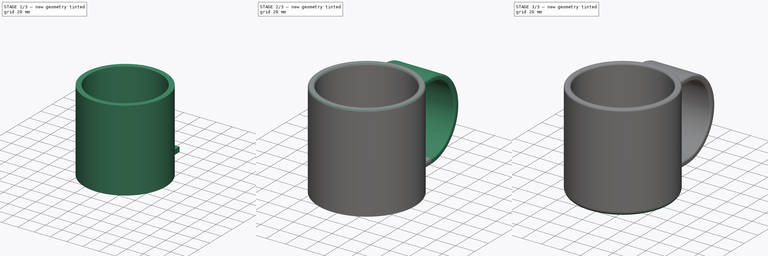
[diagram: build sequence overview — one tinted view per stage of 3, left to right]
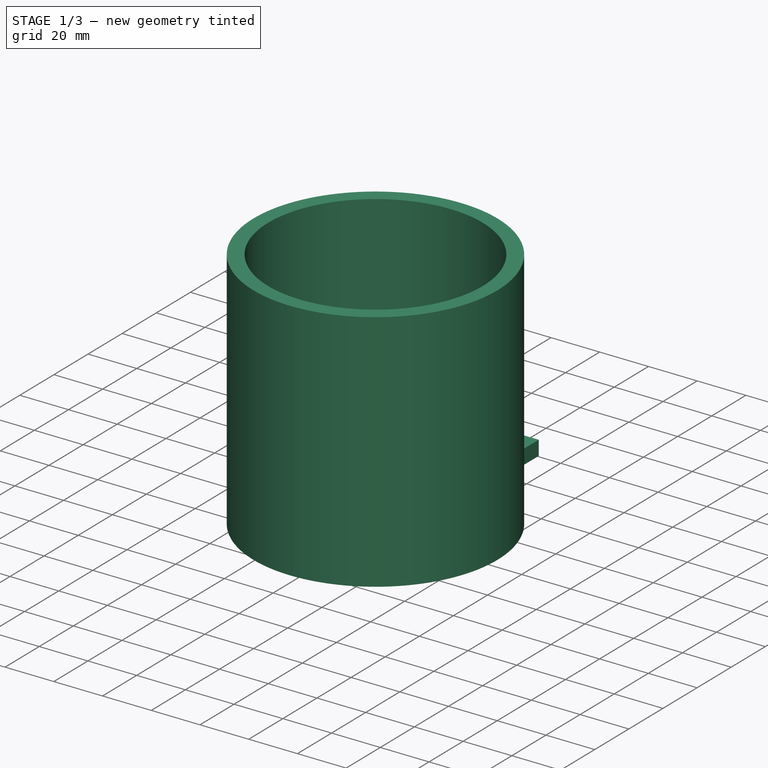
[diagram: stage 1 of 3 — iso view after this stage's code; geometry added in this stage tinted green]
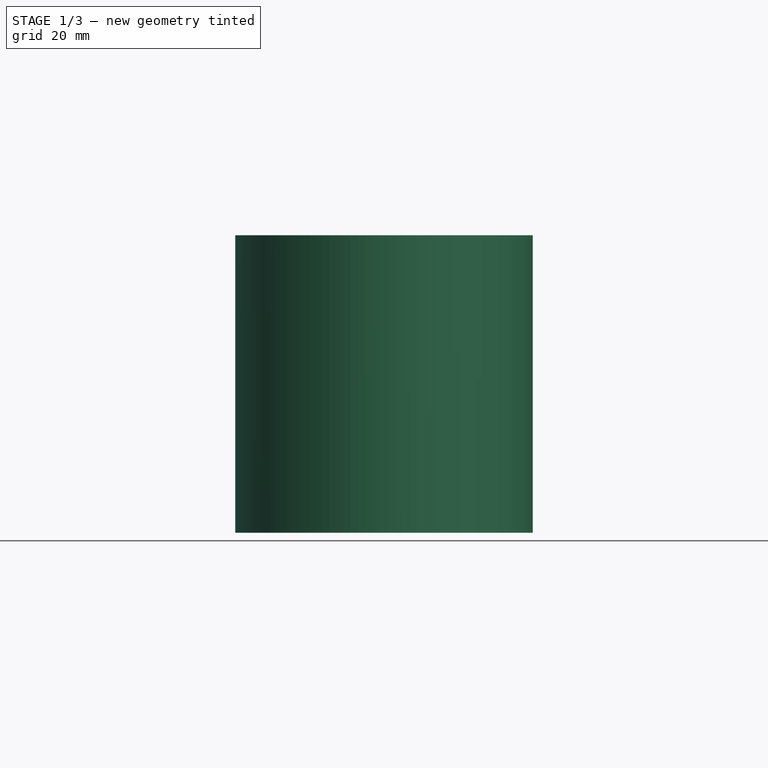
[diagram: stage 1 of 3 — front view after this stage's code; geometry added in this stage tinted green]
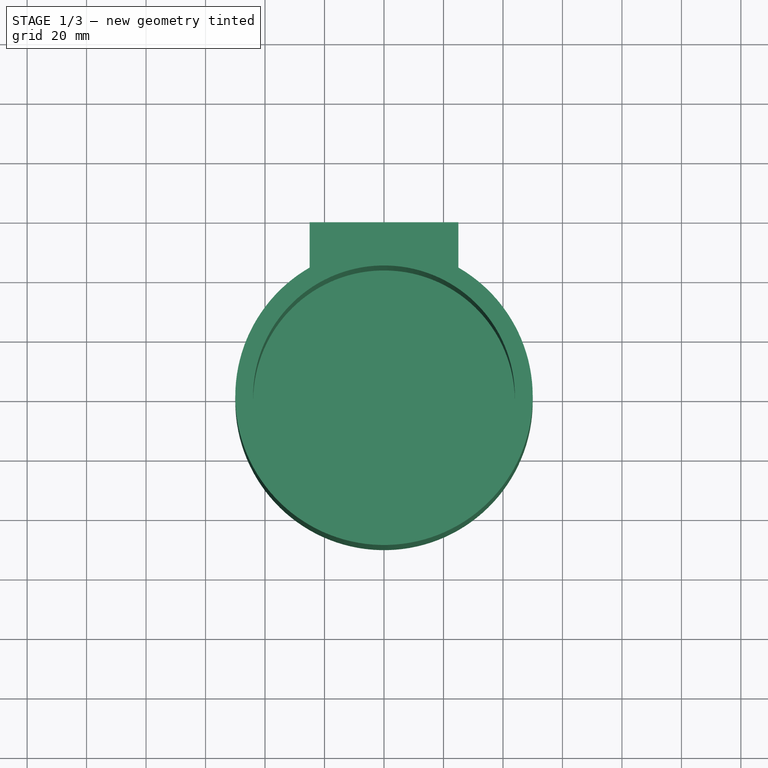
[diagram: stage 1 of 3 — top view after this stage's code; geometry added in this stage tinted green]
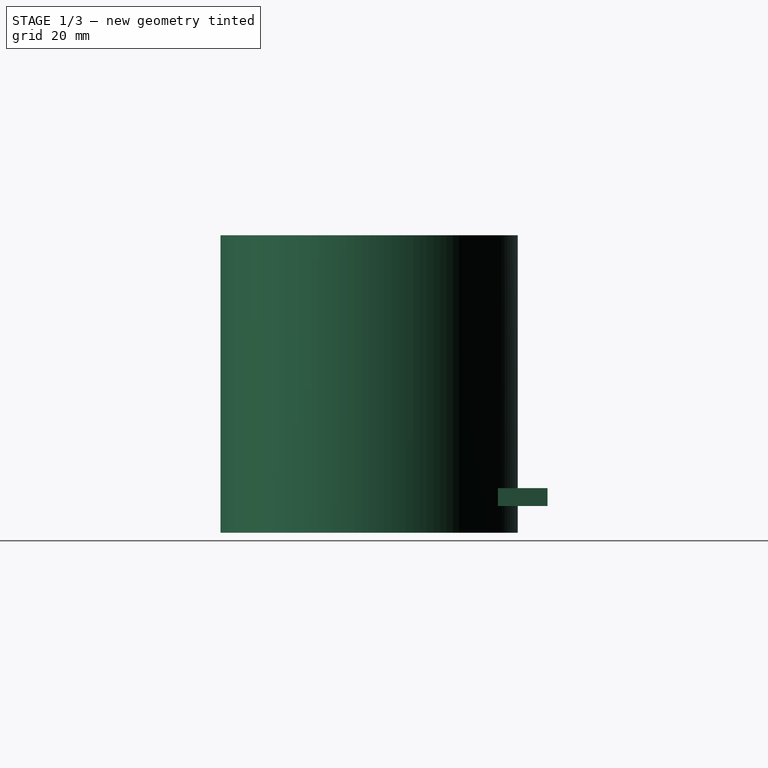
[diagram: stage 1 of 3 — right view after this stage's code; geometry added in this stage tinted green]
FCSTD DOCUMENT  (FreeCAD 0.19R22846 (Git))
Label: uebung2_remastered
License: All rights reserved
LicenseURL: http://en.wikipedia.org/wiki/All_rights_reserved
objects: Sketcher::SketchObject×3, PartDesign::Fillet×3, PartDesign::Pad×2, PartDesign::Revolution×1, PartDesign::LinearPattern×1, PartDesign::Body×1
note: 17 computed .brp shape members not serialized (recipe doc carries the construction recipe); baked Part::Feature solids carry a one-line shape summary decoded from their .brp

FEATURE [Sketcher::SketchObject] Sketch  label="sk_grundkoerper"
  MapMode = 5
  Placement = pos=(0,0,0) rot=(1,0,0;1.5708rad)
  sketch-geometry (6):
    g0: LineSegment StartX=-50 StartY=100 StartZ=0 EndX=-50 EndY=0 EndZ=0
    g1: LineSegment StartX=-44 StartY=4 StartZ=0 EndX=-44 EndY=100 EndZ=0
    g2: LineSegment StartX=-50 StartY=0 StartZ=0 EndX=0 EndY=0 EndZ=0
    g3: LineSegment StartX=0 StartY=0 StartZ=0 EndX=0 EndY=4 EndZ=0
    g4: LineSegment StartX=0 StartY=4 StartZ=0 EndX=-44 EndY=4 EndZ=0
    g5: LineSegment StartX=-44 StartY=100 StartZ=0 EndX=-50 EndY=100 EndZ=0
  constraints (17):
    c: Vertical(g0)
    c: Vertical(g1)
    c: DistanceY(g0,g1) = 4
    c: Coincident(g2,g-1)
    c: Horizontal(g2)
    c: Coincident(g2,g3)
    c: Coincident(g3,g4)
    c: Coincident(g4,g1)
    c: Horizontal(g4)
    c: Coincident(g5,g1)
    c: Coincident(g5,g0)
    c: DistanceX(g5,g5) = 6
    c: Vertical(g3)
    c: DistanceY(g0,g0) = 100
    c: DistanceX(g0,g2) = 50
    c: Horizontal(g5)
    c: Coincident(g0,g2)
FEATURE [PartDesign::Revolution] Revolution  label="r_grundkoerper"
  Angle = 360
  Axis = (0,-2e-16,1)
  Base = (0,0,0)
  Placement = pos=(0,0,0) rot=(1,0,0;1.5708rad)
  Profile = -> Sketch
  ReferenceAxis = -> Sketch [V_Axis]
  Refine = true
FEATURE [Sketcher::SketchObject] Sketch001  label="sk_griff_basis"
  AttachmentOffset = pos=(0,0,9) rot=(0,0,1;0rad)
  ExternalGeometry = -> [Revolution]
  MapMode = 5
  Placement = pos=(0,0,9) rot=(0,0,1;0rad)
  Support = -> [XY_Plane001]
  sketch-geometry (4):
    g0: LineSegment StartX=-25 StartY=60 StartZ=0 EndX=25 EndY=60 EndZ=0
    g1: LineSegment StartX=25 StartY=60 StartZ=0 EndX=25 EndY=43.3013 EndZ=0
    g2: LineSegment StartX=-25 StartY=43.3013 StartZ=0 EndX=-25 EndY=60 EndZ=0
    g3: ArcOfCircle CenterX=0 CenterY=0 CenterZ=0 NormalX=0 NormalY=0 NormalZ=1 AngleXU=0 Radius=50 StartAngle=1.0472 EndAngle=2.0944
  constraints (11):
    c: Coincident(g0,g1)
    c: Coincident(g2,g0)
    c: Vertical(g1)
    c: Vertical(g2)
    c: Coincident(g3,g-1)
    c: PointOnObject(g3,g-3)
    c: Coincident(g2,g3)
    c: Coincident(g1,g3)
    c: DistanceX(g0,g0) = 50
    c: Symmetric(g0,g0,g-2)
    c: DistanceY(g3,g0) = 60
FEATURE [PartDesign::Pad] Pad  label="p_griff_basis"
  BaseFeature = -> Revolution
  Direction = (1,1,1)
  Length = 6
  Length2 = 100
  Placement = pos=(0,0,0) rot=(1,0,0;1.5708rad)
  Profile = -> Sketch001
  Refine = true
  Type = 0
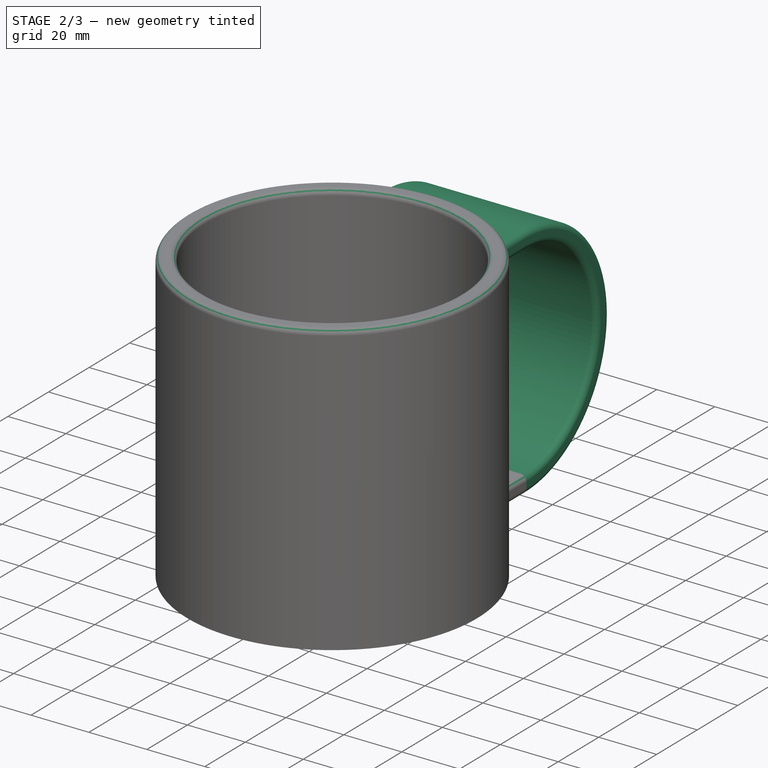
[diagram: stage 2 of 3 — iso view after this stage's code; geometry added in this stage tinted green]
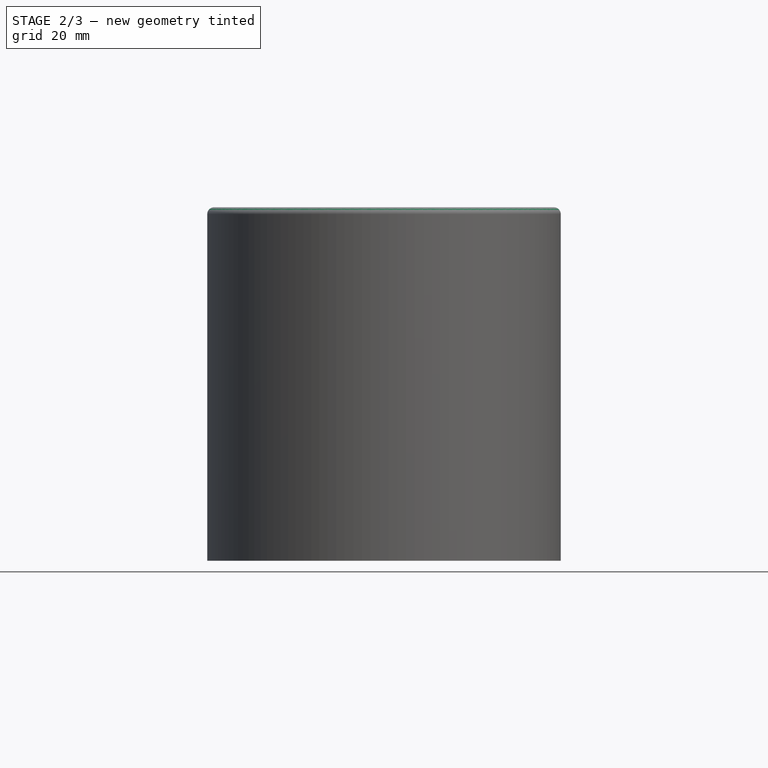
[diagram: stage 2 of 3 — front view after this stage's code; geometry added in this stage tinted green]
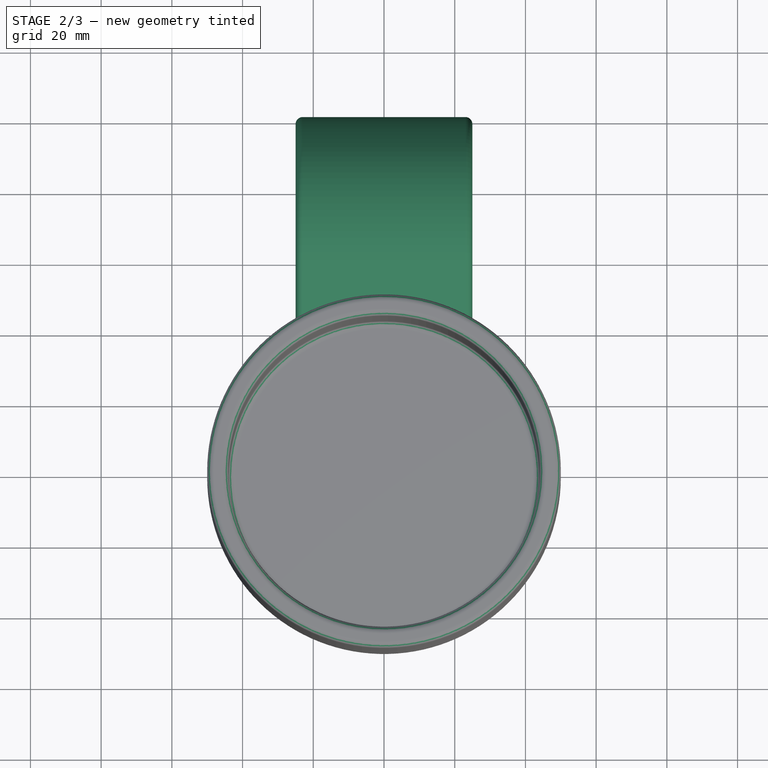
[diagram: stage 2 of 3 — top view after this stage's code; geometry added in this stage tinted green]
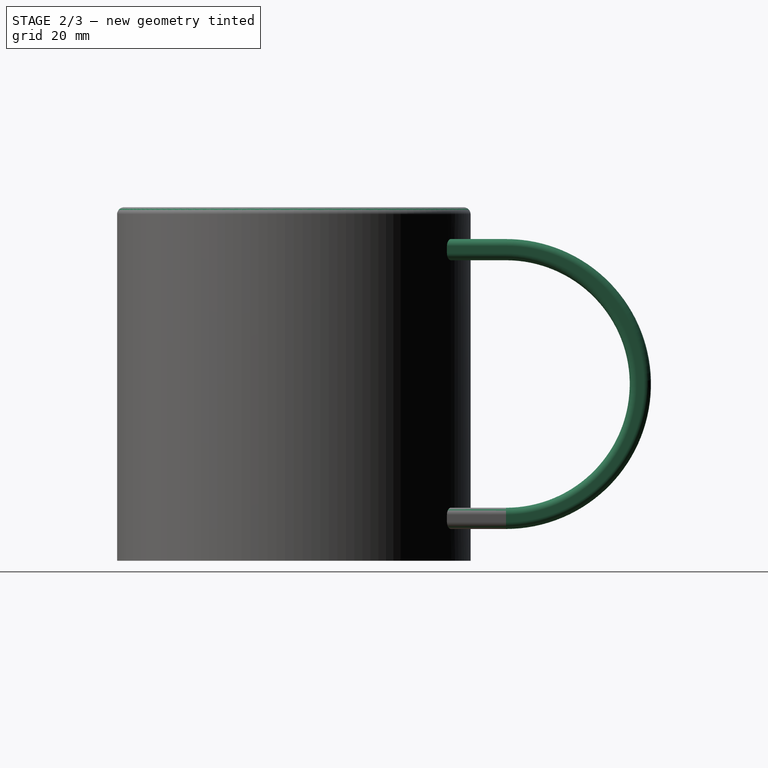
[diagram: stage 2 of 3 — right view after this stage's code; geometry added in this stage tinted green]
FEATURE [PartDesign::LinearPattern] LinearPattern  label="lp_griff_basis"
  BaseFeature = -> Pad
  Direction = -> Sketch001 [N_Axis]
  Length = 76
  Occurrences = 2
  Originals = -> [Pad]
  Placement = pos=(0,0,0) rot=(1,0,0;1.5708rad)
  Refine = true
FEATURE [Sketcher::SketchObject] Sketch002  label="sk_griff"
  MapMode = 5
  Placement = pos=(0,0,0) rot=(0.57735,0.57735,0.57735;2.0944rad)
  Support = -> [YZ_Plane001]
  sketch-geometry (4):
    g0: ArcOfCircle CenterX=60 CenterY=50 CenterZ=0 NormalX=0 NormalY=0 NormalZ=1 AngleXU=0 Radius=35 StartAngle=4.71239 EndAngle=7.85398
    g1: ArcOfCircle CenterX=60 CenterY=50 CenterZ=0 NormalX=0 NormalY=0 NormalZ=1 AngleXU=0 Radius=41 StartAngle=4.71239 EndAngle=7.85398
    g2: LineSegment StartX=60 StartY=91 StartZ=0 EndX=60 EndY=85 EndZ=0
    g3: LineSegment StartX=60 StartY=15 StartZ=0 EndX=60 EndY=9 EndZ=0
  constraints (13):
    c: Radius(g1) = 41
    c: Radius(g0) = 35
    c: Coincident(g1,g0)
    c: Vertical(g1,g0)
    c: Vertical(g0,g0)
    c: Vertical(g0,g0)
    c: Vertical(g0,g1)
    c: DistanceX(g0) = 60
    c: DistanceY(g0) = 50
    c: Coincident(g2,g1)
    c: Coincident(g2,g0)
    c: Coincident(g3,g0)
    c: Coincident(g3,g1)
FEATURE [PartDesign::Pad] Pad001  label="p_griff"
  BaseFeature = -> LinearPattern
  Direction = (1,1,1)
  Length = 50
  Length2 = 100
  Midplane = true
  Placement = pos=(0,0,0) rot=(1,0,0;1.5708rad)
  Profile = -> Sketch002
  Refine = true
  Type = 0
FEATURE [PartDesign::Fillet] Fillet  label="f_2mm_aussen"
  Base = -> Pad001 [Edge1,Edge12,Edge25,Edge30,Edge28,Edge29,Edge27]
  BaseFeature = -> Pad001
  Placement = pos=(0,0,0) rot=(1,0,0;1.5708rad)
  Radius = 2
  Refine = true
  SupportTransform = false
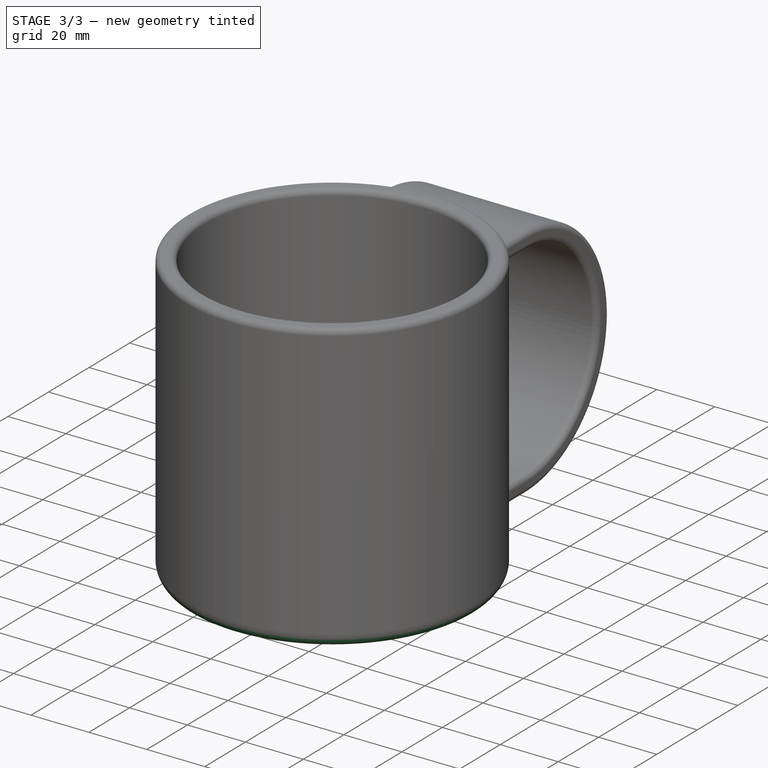
[diagram: stage 3 of 3 — iso view after this stage's code; geometry added in this stage tinted green]
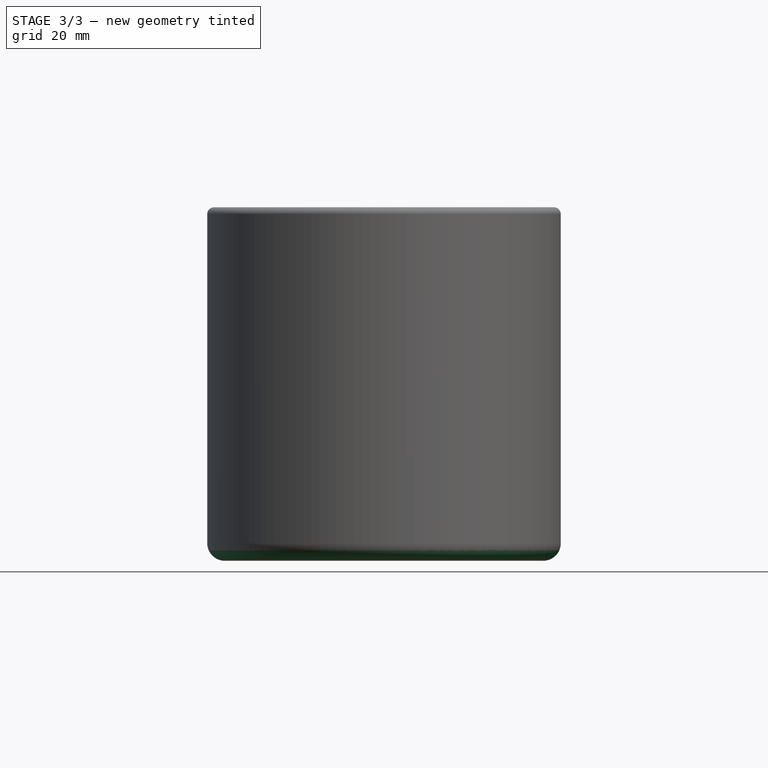
[diagram: stage 3 of 3 — front view after this stage's code; geometry added in this stage tinted green]
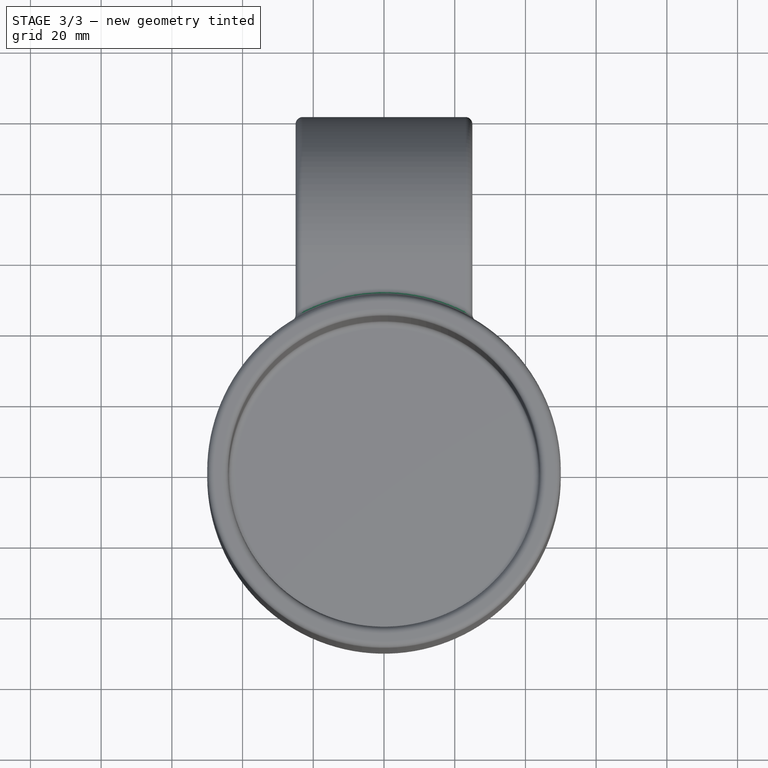
[diagram: stage 3 of 3 — top view after this stage's code; geometry added in this stage tinted green]
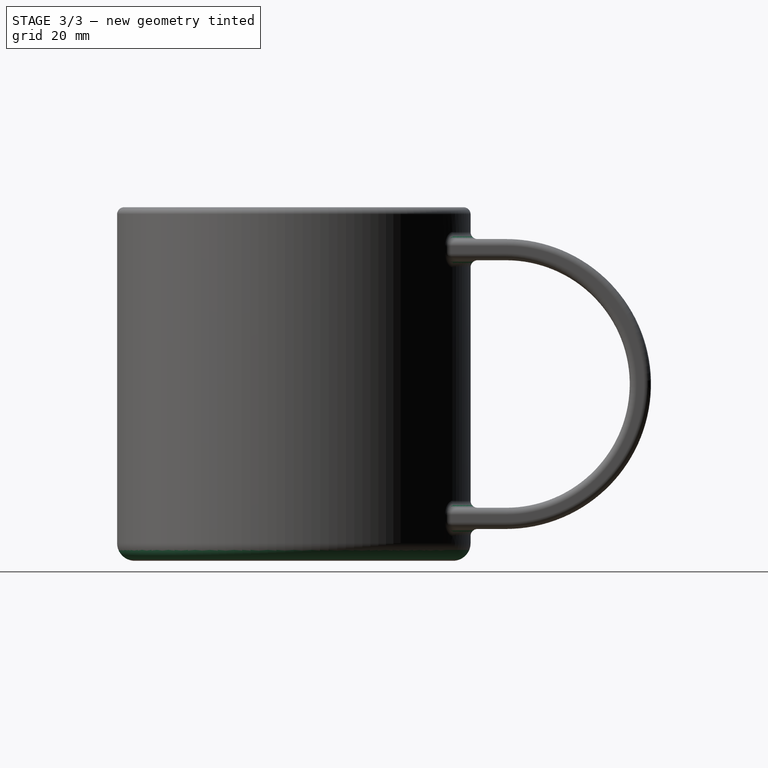
[diagram: stage 3 of 3 — right view after this stage's code; geometry added in this stage tinted green]
FEATURE [PartDesign::Fillet] Fillet001  label="f_2mm_innen"
  Base = -> Fillet [Edge8,Edge7,Edge16,Edge15]
  BaseFeature = -> Fillet
  Placement = pos=(0,0,0) rot=(1,0,0;1.5708rad)
  Radius = 2
  Refine = true
  SupportTransform = false
FEATURE [PartDesign::Fillet] Fillet002  label="f_5mm_aussen"
  Base = -> Fillet001 [Edge11]
  BaseFeature = -> Fillet001
  Placement = pos=(0,0,0) rot=(1,0,0;1.5708rad)
  Radius = 5
  Refine = true
  SupportTransform = false
FEATURE [PartDesign::Body] Body
  Group = -> [Revolution,Sketch,Sketch001,Pad,LinearPattern,Sketch002,Pad001,Fillet,Fillet001,Fillet002]
  Origin = -> Origin001
  Tip = -> Fillet002
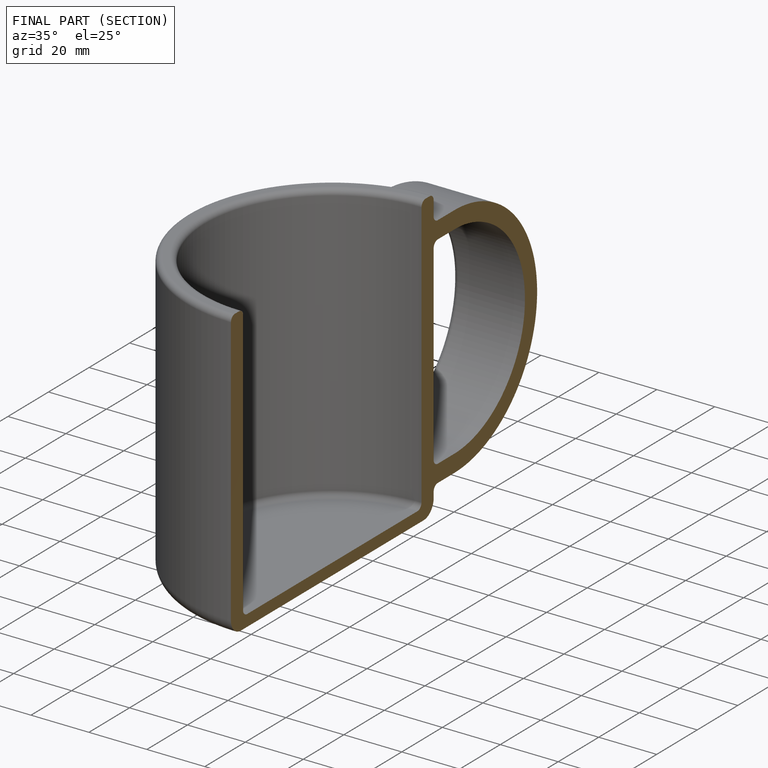
[diagram: finished part — half-section view (interior)]
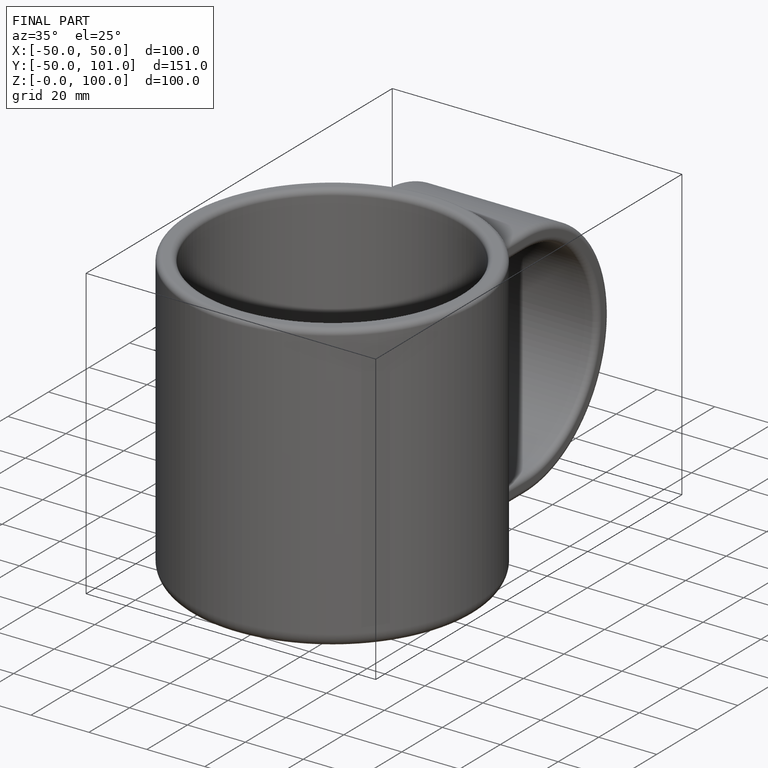
[diagram: finished part — iso view with bounding-box wireframe]
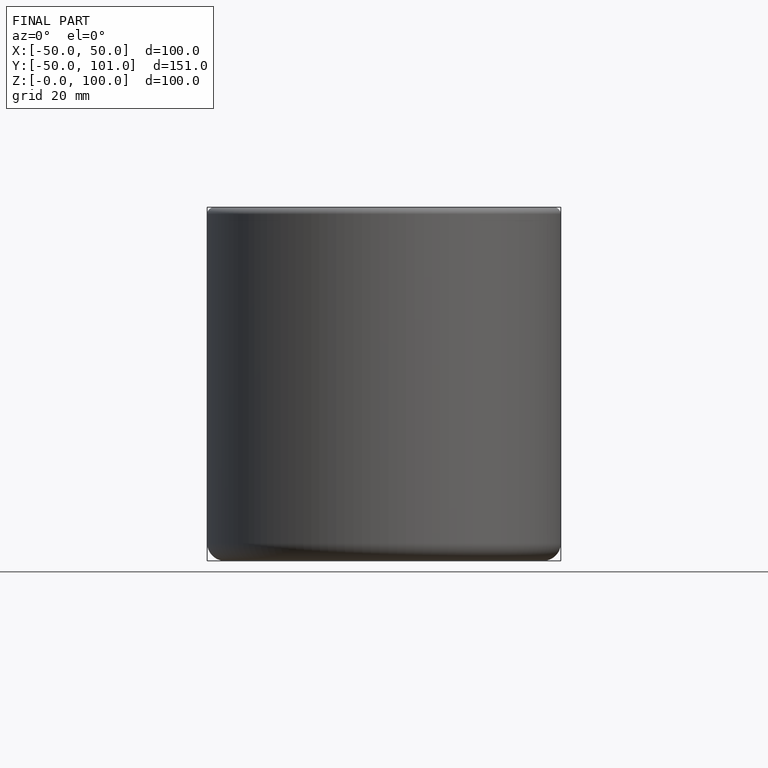
[diagram: finished part — front view with bounding-box wireframe]
